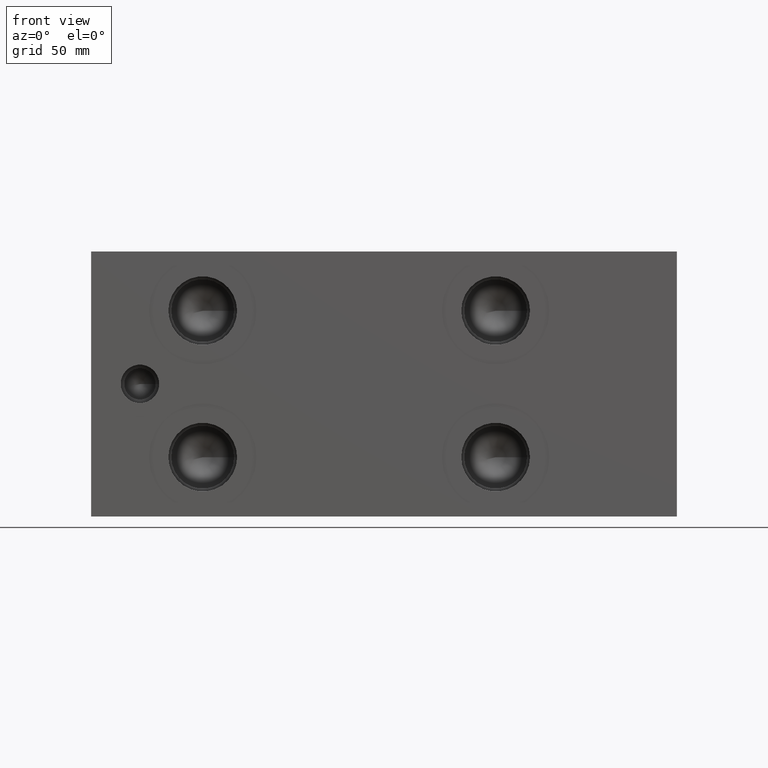
[diagram: clean part render]
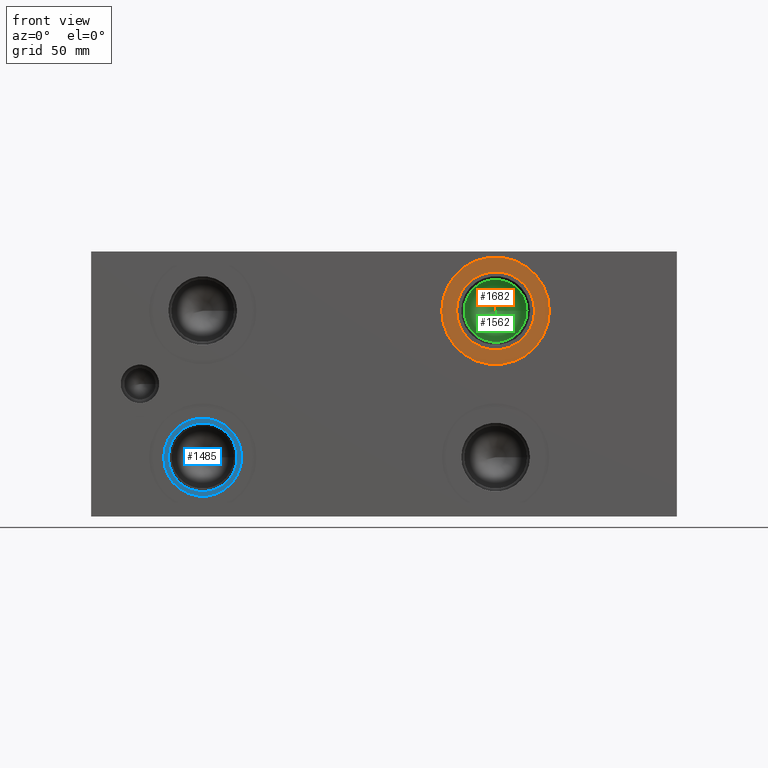
[diagram: same view with three faces highlighted in distinct colors, each labeled with its STEP entity id]
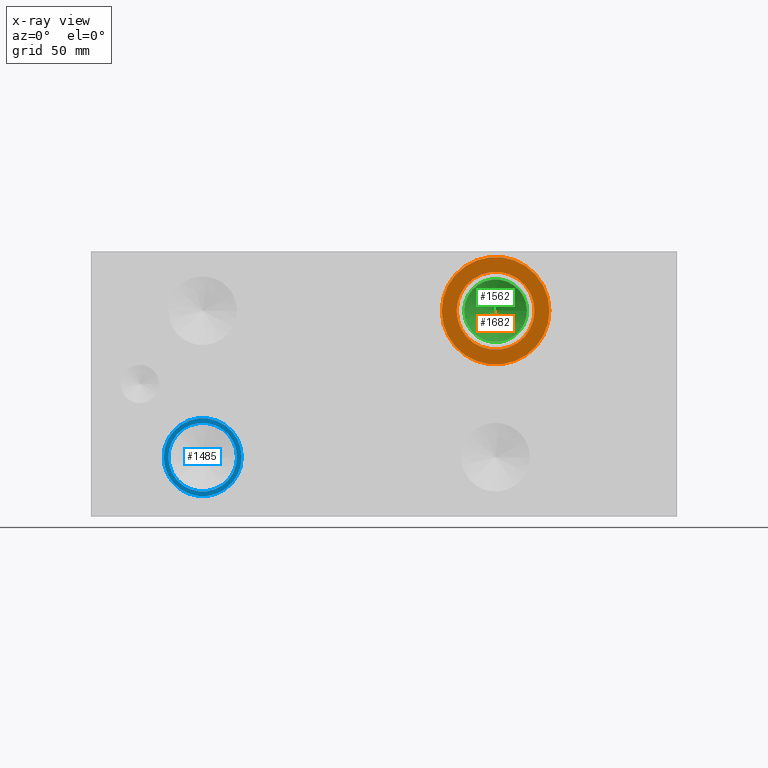
[diagram: x-ray of the same camera — body ghosted, the three highlighted faces saturated]
A machine part, front view with three faces highlighted in distinct colors.
The next image is the same camera in x-ray (body ghosted, the three faces saturated) — at least one of them is partly hidden behind the body in this view.
Their STEP definitions:

[orange] entity #1682 — the highlighted planar face has unit normal (0, 1, 0).
#1648=CARTESIAN_POINT('',(201.90460000000002,0.7874,93.662499999999994));
#1649=VERTEX_POINT('',#1648);
#1650=CARTESIAN_POINT('',(184.15000000000003,0.7874,93.662499999999994));
#1651=DIRECTION('',(0.0,-1.0,0.0));
#1652=DIRECTION('',(1.0,0.0,0.0));
#1653=AXIS2_PLACEMENT_3D('',#1650,#1651,#1652);
#1654=CIRCLE('',#1653,17.754599999999989);
#1655=EDGE_CURVE('',#1649,#1649,#1654,.T.);
#1663=CARTESIAN_POINT('',(205.27010000000004,0.7874,93.662499999999994));
#1664=DIRECTION('',(0.0,1.0,0.0));
#1665=DIRECTION('',(0.0,0.0,1.0));
#1666=AXIS2_PLACEMENT_3D('',#1663,#1664,#1665);
#1667=PLANE('',#1666);
#1668=CARTESIAN_POINT('',(208.63560000000004,0.7874,93.662499999999994));
#1669=VERTEX_POINT('',#1668);
#1670=CARTESIAN_POINT('',(184.15000000000003,0.7874,93.662499999999994));
#1671=DIRECTION('',(0.0,-1.0,0.0));
#1672=DIRECTION('',(1.0,0.0,0.0));
#1673=AXIS2_PLACEMENT_3D('',#1670,#1671,#1672);
#1674=CIRCLE('',#1673,24.485600000000005);
#1675=EDGE_CURVE('',#1669,#1669,#1674,.T.);
#1676=ORIENTED_EDGE('',*,*,#1675,.T.);
#1677=EDGE_LOOP('',(#1676));
#1678=FACE_OUTER_BOUND('',#1677,.T.);
#1679=ORIENTED_EDGE('',*,*,#1655,.F.);
#1680=EDGE_LOOP('',(#1679));
#1681=FACE_BOUND('',#1680,.T.);
#1682=ADVANCED_FACE('',(#1678,#1681),#1667,.F.);

[blue] entity #1485 — the highlighted planar face has unit normal (0, 1, 0).
#1451=CARTESIAN_POINT('',(66.433700000000002,4.064,26.987500000000004));
#1452=VERTEX_POINT('',#1451);
#1453=CARTESIAN_POINT('',(50.799999999999997,4.064,26.987500000000004));
#1454=DIRECTION('',(0.0,-1.0,0.0));
#1455=DIRECTION('',(1.0,0.0,0.0));
#1456=AXIS2_PLACEMENT_3D('',#1453,#1454,#1455);
#1457=CIRCLE('',#1456,15.633699999999999);
#1458=EDGE_CURVE('',#1452,#1452,#1457,.T.);
#1466=CARTESIAN_POINT('',(67.494150000000005,4.064,26.987500000000004));
#1467=DIRECTION('',(0.0,1.0,0.0));
#1468=DIRECTION('',(0.0,0.0,1.0));
#1469=AXIS2_PLACEMENT_3D('',#1466,#1467,#1468);
#1470=PLANE('',#1469);
#1471=CARTESIAN_POINT('',(68.554599999999994,4.064,26.987500000000004));
#1472=VERTEX_POINT('',#1471);
#1473=CARTESIAN_POINT('',(50.799999999999997,4.064,26.987500000000004));
#1474=DIRECTION('',(0.0,-1.0,0.0));
#1475=DIRECTION('',(1.0,0.0,0.0));
#1476=AXIS2_PLACEMENT_3D('',#1473,#1474,#1475);
#1477=CIRCLE('',#1476,17.754599999999996);
#1478=EDGE_CURVE('',#1472,#1472,#1477,.T.);
#1479=ORIENTED_EDGE('',*,*,#1478,.T.);
#1480=EDGE_LOOP('',(#1479));
#1481=FACE_OUTER_BOUND('',#1480,.T.);
#1482=ORIENTED_EDGE('',*,*,#1458,.F.);
#1483=EDGE_LOOP('',(#1482));
#1484=FACE_BOUND('',#1483,.T.);
#1485=ADVANCED_FACE('',(#1481,#1484),#1470,.F.);

[green] entity #1562 — the highlighted conical surface has half-angle 60 deg.
#1546=CARTESIAN_POINT('',(184.15000000000003,36.966645999999997,93.662499999999994));
#1547=DIRECTION('',(0.0,-1.0,0.0));
#1548=DIRECTION('',(1.0,0.0,0.0));
#1549=AXIS2_PLACEMENT_3D('',#1546,#1547,#1548);
#1550=CONICAL_SURFACE('',#1549,7.143750000000004,59.999999912918746);
#1551=CARTESIAN_POINT('',(198.43750000000003,32.842199999999998,93.662499999999994));
#1552=VERTEX_POINT('',#1551);
#1553=CARTESIAN_POINT('',(184.15000000000003,32.842199999999998,93.662499999999994));
#1554=DIRECTION('',(0.0,-1.0,0.0));
#1555=DIRECTION('',(1.0,0.0,0.0));
#1556=AXIS2_PLACEMENT_3D('',#1553,#1554,#1555);
#1557=CIRCLE('',#1556,14.287500000000009);
#1558=EDGE_CURVE('',#1552,#1552,#1557,.T.);
#1559=ORIENTED_EDGE('',*,*,#1558,.T.);
#1560=EDGE_LOOP('',(#1559));
#1561=FACE_OUTER_BOUND('',#1560,.T.);
#1562=ADVANCED_FACE('',(#1561),#1550,.F.);